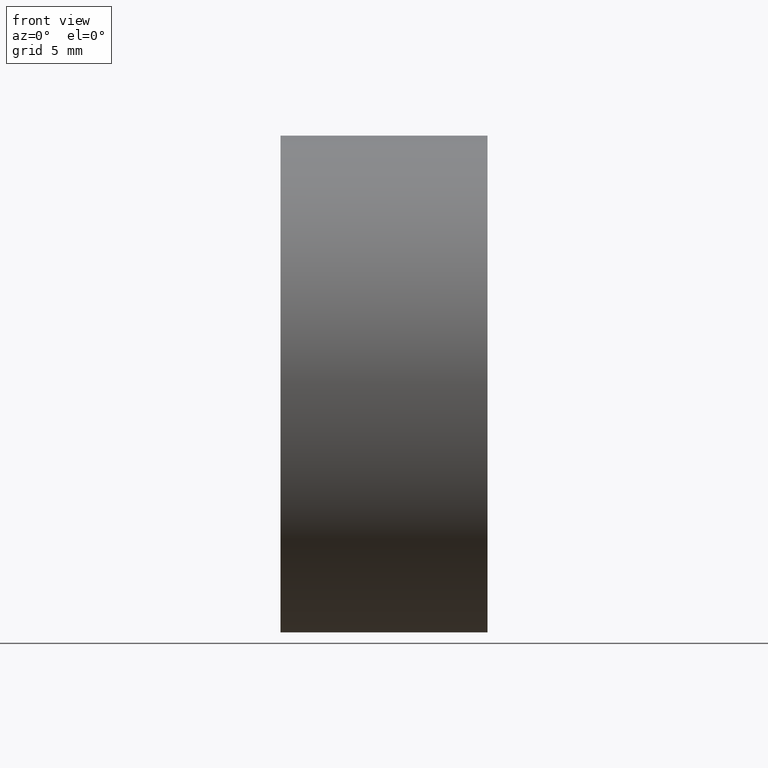
[diagram: clean part render]
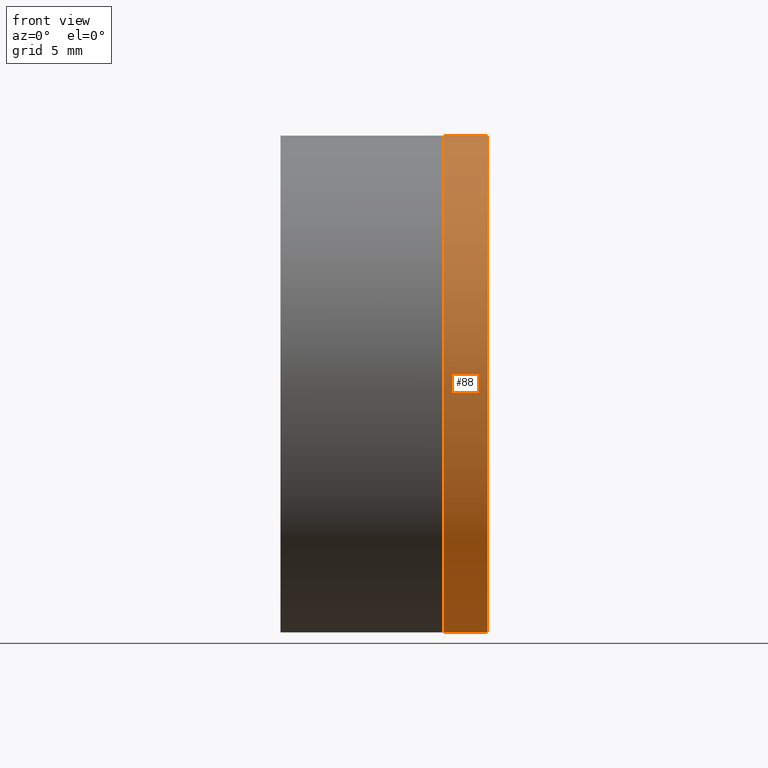
[diagram: same view with one face highlighted and labeled with its STEP entity id]
A machine part, front view. The second image highlights one B-rep face of the part: STEP entity #88.
In plain terms, the highlighted cylindrical surface (partial cylindrical patch) has radius 12.7 mm, axis along (-1, -0, -0).
Its self-contained STEP definition (entity closure, byte-faithful):
#4 = DIRECTION ( 'NONE',  ( 0.0000000000000000000, 0.0000000000000000000, 1.000000000000000000 ) ) ;
#8 = ORIENTED_EDGE ( 'NONE', *, *, #295, .T. ) ;
#15 = ORIENTED_EDGE ( 'NONE', *, *, #235, .F. ) ;
#25 = CARTESIAN_POINT ( 'NONE',  ( 267.7101150449228700, 0.0000000000000000000, 12.69999999999999800 ) ) ;
#27 = CARTESIAN_POINT ( 'NONE',  ( 267.7101150449228700, 0.0000000000000000000, 0.0000000000000000000 ) ) ;
#28 = DIRECTION ( 'NONE',  ( 0.0000000000000000000, 0.0000000000000000000, 1.000000000000000000 ) ) ;
#33 = CARTESIAN_POINT ( 'NONE',  ( 265.4434669434605200, 0.0000000000000000000, 12.69999999999995000 ) ) ;
#37 = CARTESIAN_POINT ( 'NONE',  ( 257.1233165672844600, 1.555301434917135700E-015, -12.69999999999997400 ) ) ;
#50 = DIRECTION ( 'NONE',  ( -1.000000000000000000, -0.0000000000000000000, -0.0000000000000000000 ) ) ;
#65 = DIRECTION ( 'NONE',  ( 0.0000000000000000000, 0.0000000000000000000, 1.000000000000000000 ) ) ;
#66 = AXIS2_PLACEMENT_3D ( 'NONE', #27, #196, #4 ) ;
#73 = DIRECTION ( 'NONE',  ( -1.000000000000000000, -0.0000000000000000000, -0.0000000000000000000 ) ) ;
#84 = AXIS2_PLACEMENT_3D ( 'NONE', #199, #168, #28 ) ;
#86 = CARTESIAN_POINT ( 'NONE',  ( 265.4434669434605200, 1.555301434917132300E-015, -12.69999999999995000 ) ) ;
#88 = ADVANCED_FACE ( 'NONE', ( #125 ), #270, .T. ) ;
#90 = EDGE_CURVE ( 'NONE', #328, #129, #340, .T. ) ;
#95 = AXIS2_PLACEMENT_3D ( 'NONE', #121, #73, #65 ) ;
#121 = CARTESIAN_POINT ( 'NONE',  ( 265.4434669434605200, 0.0000000000000000000, 0.0000000000000000000 ) ) ;
#124 = CIRCLE ( 'NONE', #95, 12.69999999999995100 ) ;
#125 = FACE_OUTER_BOUND ( 'NONE', #221, .T. ) ;
#129 = VERTEX_POINT ( 'NONE', #25 ) ;
#131 = LINE ( 'NONE', #37, #267 ) ;
#136 = VERTEX_POINT ( 'NONE', #86 ) ;
#150 = VERTEX_POINT ( 'NONE', #33 ) ;
#168 = DIRECTION ( 'NONE',  ( -1.000000000000000000, -0.0000000000000000000, -0.0000000000000000000 ) ) ;
#186 = LINE ( 'NONE', #209, #246 ) ;
#189 = CARTESIAN_POINT ( 'NONE',  ( 267.7101150449228700, 1.555301434917138200E-015, -12.69999999999999800 ) ) ;
#196 = DIRECTION ( 'NONE',  ( -1.000000000000000000, -0.0000000000000000000, -0.0000000000000000000 ) ) ;
#199 = CARTESIAN_POINT ( 'NONE',  ( 257.1233165672844600, 0.0000000000000000000, 0.0000000000000000000 ) ) ;
#209 = CARTESIAN_POINT ( 'NONE',  ( 257.1233165672844600, 0.0000000000000000000, 12.69999999999997400 ) ) ;
#221 = EDGE_LOOP ( 'NONE', ( #15, #344, #8, #307 ) ) ;
#235 = EDGE_CURVE ( 'NONE', #328, #136, #131, .T. ) ;
#246 = VECTOR ( 'NONE', #50, 1000.000000000000000 ) ;
#259 = EDGE_CURVE ( 'NONE', #136, #150, #124, .T. ) ;
#261 = DIRECTION ( 'NONE',  ( -1.000000000000000000, -0.0000000000000000000, -0.0000000000000000000 ) ) ;
#267 = VECTOR ( 'NONE', #261, 1000.000000000000000 ) ;
#270 = CYLINDRICAL_SURFACE ( 'NONE', #84, 12.69999999999997400 ) ;
#295 = EDGE_CURVE ( 'NONE', #129, #150, #186, .T. ) ;
#307 = ORIENTED_EDGE ( 'NONE', *, *, #259, .F. ) ;
#328 = VERTEX_POINT ( 'NONE', #189 ) ;
#340 = CIRCLE ( 'NONE', #66, 12.69999999999999800 ) ;
#344 = ORIENTED_EDGE ( 'NONE', *, *, #90, .T. ) ;